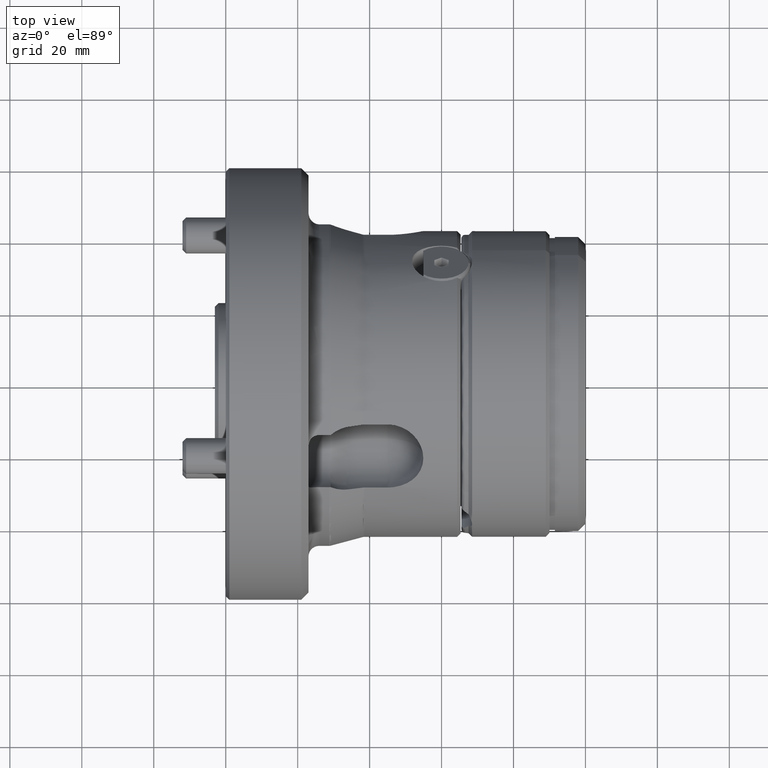
[diagram: clean part render]
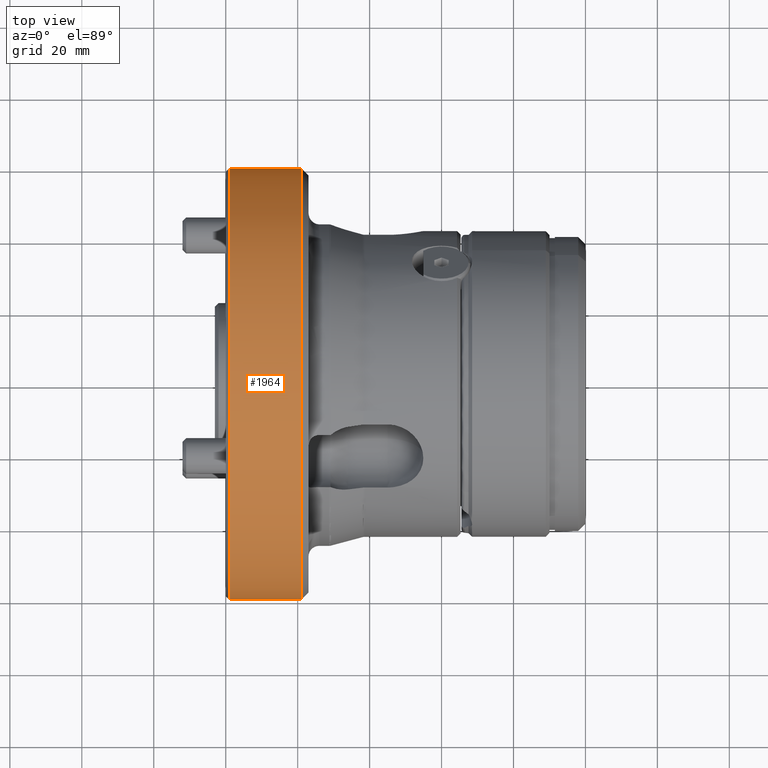
[diagram: same view with one face highlighted and labeled with its STEP entity id]
A machine part, top view. The second image highlights one B-rep face of the part: STEP entity #1964.
In plain terms, the highlighted cylindrical surface (partial cylindrical patch) has radius 60 mm, axis along (-1, 0, 0).
Its self-contained STEP definition (entity closure, byte-faithful):
#265 = ORIENTED_EDGE ( 'NONE', *, *, #1728, .F. ) ;
#504 = DIRECTION ( 'NONE',  ( -1.000000000000000000, 8.386477729145246300E-033, -0.0000000000000000000 ) ) ;
#816 = CARTESIAN_POINT ( 'NONE',  ( 21.00000000000001800, -60.00000000000000000, 0.0000000000000000000 ) ) ;
#931 = VERTEX_POINT ( 'NONE', #816 ) ;
#1044 = EDGE_CURVE ( 'NONE', #2133, #1209, #5062, .T. ) ;
#1209 = VERTEX_POINT ( 'NONE', #2956 ) ;
#1453 = VECTOR ( 'NONE', #1767, 1000.000000000000000 ) ;
#1494 = AXIS2_PLACEMENT_3D ( 'NONE', #6266, #8369, #1977 ) ;
#1673 = CIRCLE ( 'NONE', #5376, 60.00000000000000000 ) ;
#1728 = EDGE_CURVE ( 'NONE', #931, #1209, #7953, .T. ) ;
#1767 = DIRECTION ( 'NONE',  ( -1.000000000000000000, 8.386477729145236700E-033, -0.0000000000000000000 ) ) ;
#1964 = ADVANCED_FACE ( 'NONE', ( #7510 ), #3719, .T. ) ;
#1977 = DIRECTION ( 'NONE',  ( -8.386477729145238100E-033, -1.000000000000000000, 0.0000000000000000000 ) ) ;
#2133 = VERTEX_POINT ( 'NONE', #9210 ) ;
#2916 = AXIS2_PLACEMENT_3D ( 'NONE', #8152, #3860, #8852 ) ;
#2917 = CARTESIAN_POINT ( 'NONE',  ( -5.031886637487142600E-031, -60.00000000000000000, 0.0000000000000000000 ) ) ;
#2956 = CARTESIAN_POINT ( 'NONE',  ( 0.9999999999999872300, -60.00000000000000000, 0.0000000000000000000 ) ) ;
#3511 = EDGE_CURVE ( 'NONE', #4857, #2133, #7141, .T. ) ;
#3719 = CYLINDRICAL_SURFACE ( 'NONE', #1494, 60.00000000000000000 ) ;
#3860 = DIRECTION ( 'NONE',  ( 1.000000000000000000, -8.386477729145236700E-033, 0.0000000000000000000 ) ) ;
#4143 = VECTOR ( 'NONE', #8672, 1000.000000000000000 ) ;
#4304 = ORIENTED_EDGE ( 'NONE', *, *, #3511, .T. ) ;
#4502 = EDGE_CURVE ( 'NONE', #931, #4857, #1673, .T. ) ;
#4777 = CARTESIAN_POINT ( 'NONE',  ( 21.00000000000001800, -1.761160323120501400E-031, 0.0000000000000000000 ) ) ;
#4857 = VERTEX_POINT ( 'NONE', #5470 ) ;
#5062 = CIRCLE ( 'NONE', #2916, 60.00000000000000000 ) ;
#5376 = AXIS2_PLACEMENT_3D ( 'NONE', #4777, #504, #5501 ) ;
#5470 = CARTESIAN_POINT ( 'NONE',  ( 21.00000000000001800, 60.00000000000000000, 7.347880794884118400E-015 ) ) ;
#5501 = DIRECTION ( 'NONE',  ( 0.0000000000000000000, -1.000000000000000000, 0.0000000000000000000 ) ) ;
#5874 = EDGE_LOOP ( 'NONE', ( #8562, #4304, #8198, #265 ) ) ;
#6266 = CARTESIAN_POINT ( 'NONE',  ( 0.0000000000000000000, 0.0000000000000000000, 0.0000000000000000000 ) ) ;
#7141 = LINE ( 'NONE', #8910, #1453 ) ;
#7510 = FACE_OUTER_BOUND ( 'NONE', #5874, .T. ) ;
#7953 = LINE ( 'NONE', #2917, #4143 ) ;
#8152 = CARTESIAN_POINT ( 'NONE',  ( 0.9999999999999872300, -8.386477729145131300E-033, 0.0000000000000000000 ) ) ;
#8198 = ORIENTED_EDGE ( 'NONE', *, *, #1044, .T. ) ;
#8369 = DIRECTION ( 'NONE',  ( -1.000000000000000000, 8.386477729145238100E-033, -0.0000000000000000000 ) ) ;
#8562 = ORIENTED_EDGE ( 'NONE', *, *, #4502, .T. ) ;
#8672 = DIRECTION ( 'NONE',  ( -1.000000000000000000, 8.386477729145236700E-033, -0.0000000000000000000 ) ) ;
#8852 = DIRECTION ( 'NONE',  ( 0.0000000000000000000, 1.000000000000000000, 0.0000000000000000000 ) ) ;
#8910 = CARTESIAN_POINT ( 'NONE',  ( 5.031886637487142600E-031, 60.00000000000000000, 7.347880794884118400E-015 ) ) ;
#9210 = CARTESIAN_POINT ( 'NONE',  ( 0.9999999999999872300, 60.00000000000000000, 7.347880794884118400E-015 ) ) ;